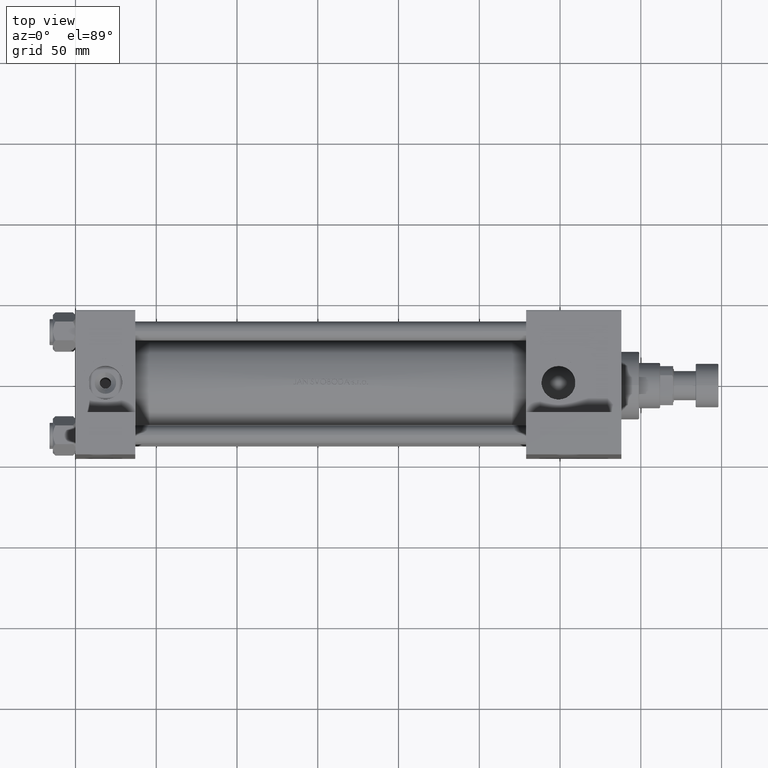
[diagram: clean part render]
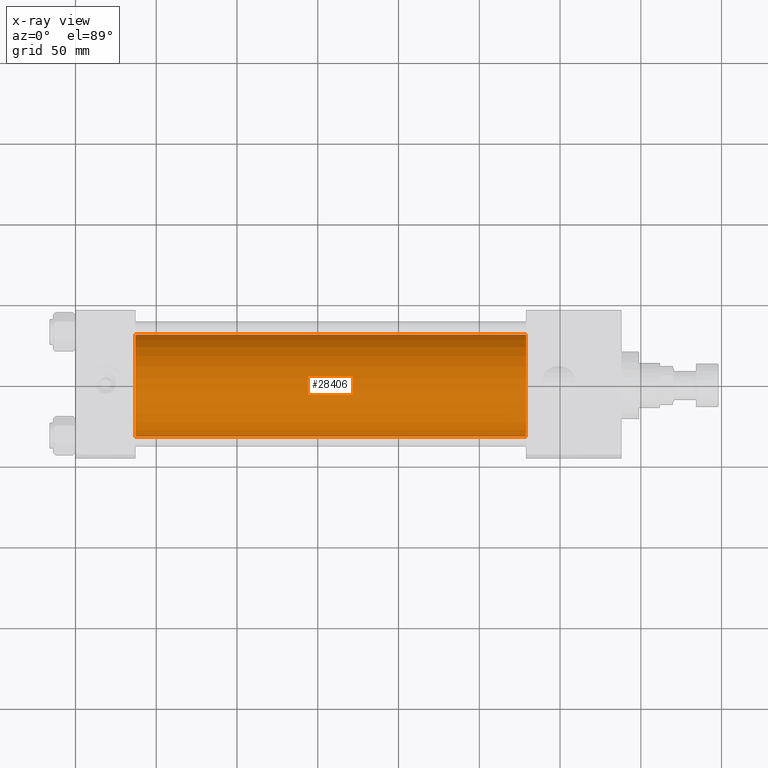
[diagram: x-ray — body ghosted, one internal face saturated and labeled with its STEP entity id]
A machine part, top view, then the same camera in x-ray: the body is ghosted and one INTERNAL B-rep face — a face not visible from any outside direction — is saturated and labeled: STEP entity #28406.
In plain terms, the highlighted cylindrical surface (partial cylindrical patch) has radius 31.5 mm, axis along (-1, -0, 0).
Its self-contained STEP definition (entity closure, byte-faithful):
#1812 = DIRECTION ( 'NONE',  ( 1.000000000000000000, 0.000000000000000000, 0.000000000000000000 ) ) ;
#2771 = VECTOR ( 'NONE', #41824, 1000.000000000000000 ) ;
#4964 = DIRECTION ( 'NONE',  ( -1.000000000000000000, -0.000000000000000000, -0.000000000000000000 ) ) ;
#5897 = ORIENTED_EDGE ( 'NONE', *, *, #25889, .T. ) ;
#6084 = VERTEX_POINT ( 'NONE', #40023 ) ;
#6535 = VECTOR ( 'NONE', #43271, 1000.000000000000000 ) ;
#6571 = AXIS2_PLACEMENT_3D ( 'NONE', #12072, #4964, #47038 ) ;
#6583 = CARTESIAN_POINT ( 'NONE',  ( 278.9999999999999432, 0.000000000000000000, -1.000000000000007772 ) ) ;
#9635 = CARTESIAN_POINT ( 'NONE',  ( 37.00000000000000000, 3.857637417314162689E-15, -32.50000000000000711 ) ) ;
#9726 = VERTEX_POINT ( 'NONE', #9635 ) ;
#12072 = CARTESIAN_POINT ( 'NONE',  ( 278.9999999999999432, 0.000000000000000000, -1.000000000000007772 ) ) ;
#12115 = CARTESIAN_POINT ( 'NONE',  ( 278.9999999999999432, 3.857637417314162689E-15, -32.50000000000000711 ) ) ;
#13480 = CARTESIAN_POINT ( 'NONE',  ( 37.00000000000000000, 0.000000000000000000, -1.000000000000007772 ) ) ;
#14666 = ORIENTED_EDGE ( 'NONE', *, *, #27963, .T. ) ;
#18764 = DIRECTION ( 'NONE',  ( 0.000000000000000000, 0.000000000000000000, -1.000000000000000000 ) ) ;
#19042 = LINE ( 'NONE', #23349, #2771 ) ;
#20101 = VERTEX_POINT ( 'NONE', #49603 ) ;
#21438 = ORIENTED_EDGE ( 'NONE', *, *, #32911, .F. ) ;
#22134 = AXIS2_PLACEMENT_3D ( 'NONE', #13480, #1812, #31988 ) ;
#22688 = AXIS2_PLACEMENT_3D ( 'NONE', #6583, #37979, #18764 ) ;
#23349 = CARTESIAN_POINT ( 'NONE',  ( 278.9999999999999432, 0.000000000000000000, 30.49999999999999289 ) ) ;
#23944 = EDGE_LOOP ( 'NONE', ( #5897, #14666, #21438, #36195 ) ) ;
#25889 = EDGE_CURVE ( 'NONE', #20101, #6084, #27586, .T. ) ;
#27586 = CIRCLE ( 'NONE', #22688, 31.50000000000000000 ) ;
#27963 = EDGE_CURVE ( 'NONE', #6084, #9726, #43018, .T. ) ;
#28031 = FACE_OUTER_BOUND ( 'NONE', #23944, .T. ) ;
#28406 = ADVANCED_FACE ( 'NONE', ( #28031 ), #35102, .F. ) ;
#31988 = DIRECTION ( 'NONE',  ( 0.000000000000000000, 0.000000000000000000, -1.000000000000000000 ) ) ;
#32911 = EDGE_CURVE ( 'NONE', #47258, #9726, #35832, .T. ) ;
#34594 = CARTESIAN_POINT ( 'NONE',  ( 37.00000000000000000, 0.000000000000000000, 30.49999999999999289 ) ) ;
#35102 = CYLINDRICAL_SURFACE ( 'NONE', #6571, 31.50000000000000000 ) ;
#35832 = CIRCLE ( 'NONE', #22134, 31.50000000000000000 ) ;
#36195 = ORIENTED_EDGE ( 'NONE', *, *, #38048, .F. ) ;
#37979 = DIRECTION ( 'NONE',  ( 1.000000000000000000, 0.000000000000000000, 0.000000000000000000 ) ) ;
#38048 = EDGE_CURVE ( 'NONE', #20101, #47258, #19042, .T. ) ;
#40023 = CARTESIAN_POINT ( 'NONE',  ( 278.9999999999999432, 3.857637417314162689E-15, -32.50000000000000711 ) ) ;
#41824 = DIRECTION ( 'NONE',  ( -1.000000000000000000, -0.000000000000000000, -0.000000000000000000 ) ) ;
#43018 = LINE ( 'NONE', #12115, #6535 ) ;
#43271 = DIRECTION ( 'NONE',  ( -1.000000000000000000, -0.000000000000000000, -0.000000000000000000 ) ) ;
#47038 = DIRECTION ( 'NONE',  ( 0.000000000000000000, 0.000000000000000000, 1.000000000000000000 ) ) ;
#47258 = VERTEX_POINT ( 'NONE', #34594 ) ;
#49603 = CARTESIAN_POINT ( 'NONE',  ( 278.9999999999999432, 0.000000000000000000, 30.49999999999999289 ) ) ;